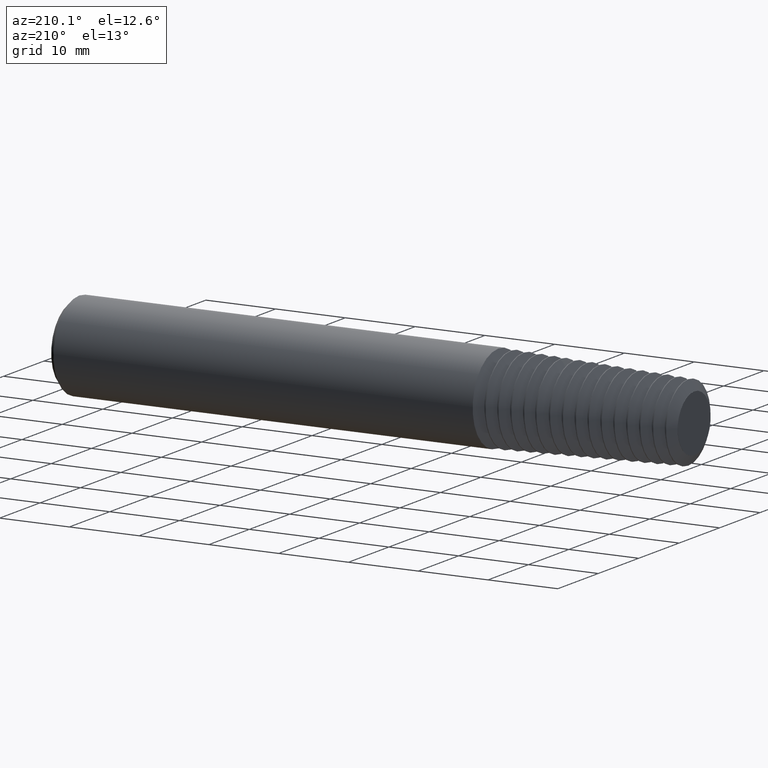
[diagram: clean part render]
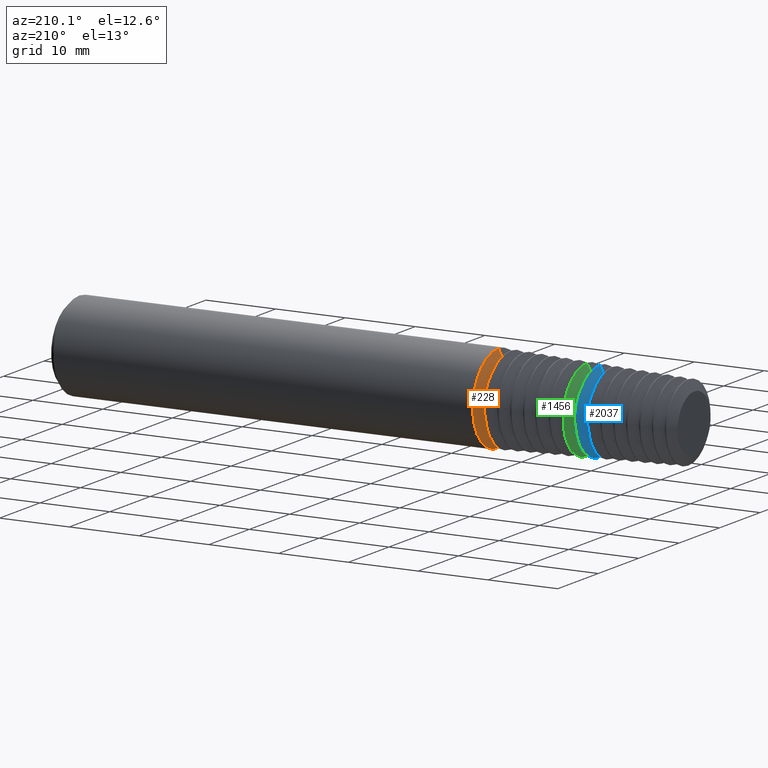
[diagram: same view with three faces highlighted in distinct colors, each labeled with its STEP entity id]
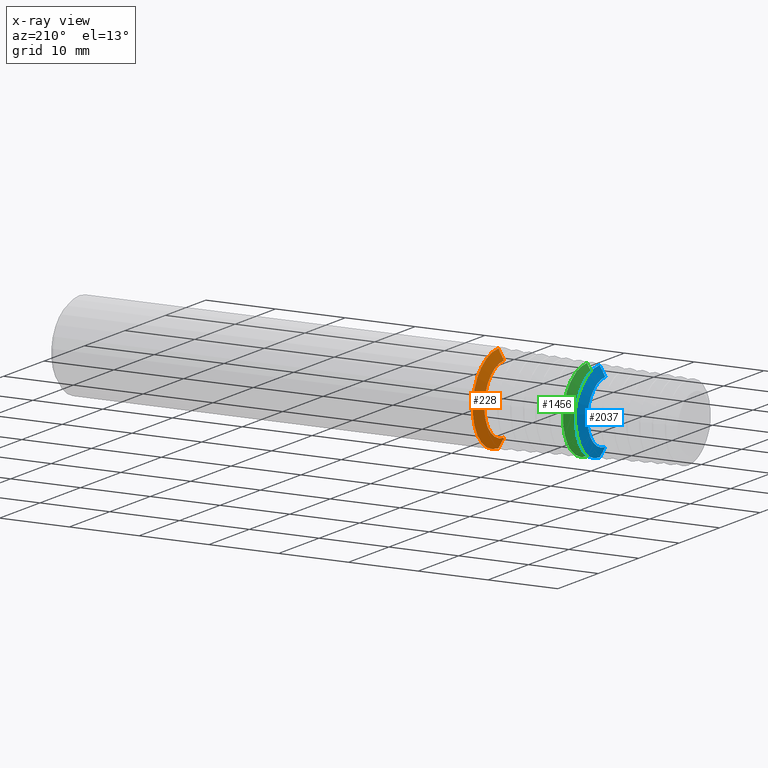
[diagram: x-ray of the same camera — body ghosted, the three highlighted faces saturated]
A machine part, auxiliary view with three faces highlighted in distinct colors.
The next image is the same camera in x-ray (body ghosted, the three faces saturated) — at least one of them is partly hidden behind the body in this view.
Their STEP definitions:

[orange] entity #228 — the highlighted conical surface has half-angle 60.258 deg.
#140 = CARTESIAN_POINT ( 'NONE',  ( 0.09742857173323683784, 0.0000000000000000000, -0.1931546316964028176 ) ) ;
#151 = CARTESIAN_POINT ( 'NONE',  ( 0.1298227692868461347, 0.0000000000000000000, 0.2498499999999999888 ) ) ;
#191 = CARTESIAN_POINT ( 'NONE',  ( 0.1298227692868461347, 0.0000000000000000000, 0.0000000000000000000 ) ) ;
#228 = ADVANCED_FACE ( 'NONE', ( #2712 ), #2635, .T. ) ;
#250 = AXIS2_PLACEMENT_3D ( 'NONE', #507, #2077, #2571 ) ;
#252 = VECTOR ( 'NONE', #3117, 39.37007874015748143 ) ;
#433 = DIRECTION ( 'NONE',  ( 1.000000000000000000, -0.0000000000000000000, -0.0000000000000000000 ) ) ;
#507 = CARTESIAN_POINT ( 'NONE',  ( 0.09742857173323683784, 0.0000000000000000000, 0.0000000000000000000 ) ) ;
#630 = VERTEX_POINT ( 'NONE', #140 ) ;
#646 = CARTESIAN_POINT ( 'NONE',  ( 0.1498435585412066506, 3.488893747639883349E-17, 0.2848897943528687082 ) ) ;
#702 = EDGE_CURVE ( 'NONE', #1572, #2912, #1241, .T. ) ;
#772 = CARTESIAN_POINT ( 'NONE',  ( 0.1498435585412066506, 0.0000000000000000000, 0.0000000000000000000 ) ) ;
#793 = ORIENTED_EDGE ( 'NONE', *, *, #1354, .T. ) ;
#982 = CARTESIAN_POINT ( 'NONE',  ( 0.1298227692868461347, 3.059780027669661931E-17, -0.2498499999999999888 ) ) ;
#1076 = ORIENTED_EDGE ( 'NONE', *, *, #702, .F. ) ;
#1241 = CIRCLE ( 'NONE', #3293, 0.2498499999999999888 ) ;
#1354 = EDGE_CURVE ( 'NONE', #1467, #2912, #2125, .T. ) ;
#1467 = VERTEX_POINT ( 'NONE', #1941 ) ;
#1572 = VERTEX_POINT ( 'NONE', #982 ) ;
#1619 = AXIS2_PLACEMENT_3D ( 'NONE', #772, #2999, #2802 ) ;
#1921 = VECTOR ( 'NONE', #2648, 39.37007874015748143 ) ;
#1941 = CARTESIAN_POINT ( 'NONE',  ( 0.09742857173323683784, 2.365462014474856199E-17, 0.1931546316964028176 ) ) ;
#2077 = DIRECTION ( 'NONE',  ( 1.000000000000000000, -0.0000000000000000000, -0.0000000000000000000 ) ) ;
#2125 = LINE ( 'NONE', #646, #1921 ) ;
#2177 = DIRECTION ( 'NONE',  ( 0.0000000000000000000, 0.0000000000000000000, -1.000000000000000000 ) ) ;
#2221 = EDGE_LOOP ( 'NONE', ( #2935, #793, #1076, #2819 ) ) ;
#2260 = EDGE_CURVE ( 'NONE', #630, #1467, #2596, .T. ) ;
#2387 = EDGE_CURVE ( 'NONE', #630, #1572, #2401, .T. ) ;
#2401 = LINE ( 'NONE', #2612, #252 ) ;
#2571 = DIRECTION ( 'NONE',  ( 0.0000000000000000000, 0.0000000000000000000, -1.000000000000000000 ) ) ;
#2596 = CIRCLE ( 'NONE', #250, 0.1931546316964028176 ) ;
#2612 = CARTESIAN_POINT ( 'NONE',  ( 0.1498435585412066506, 0.0000000000000000000, -0.2848897943528687082 ) ) ;
#2635 = CONICAL_SURFACE ( 'NONE', #1619, 0.2848897943528687082, 1.051692173941522368 ) ;
#2648 = DIRECTION ( 'NONE',  ( 0.4961025052282187486, 1.063316679479361290E-16, 0.8682639600411184988 ) ) ;
#2712 = FACE_OUTER_BOUND ( 'NONE', #2221, .T. ) ;
#2802 = DIRECTION ( 'NONE',  ( 0.0000000000000000000, 0.0000000000000000000, -1.000000000000000000 ) ) ;
#2819 = ORIENTED_EDGE ( 'NONE', *, *, #2387, .F. ) ;
#2912 = VERTEX_POINT ( 'NONE', #151 ) ;
#2935 = ORIENTED_EDGE ( 'NONE', *, *, #2260, .T. ) ;
#2999 = DIRECTION ( 'NONE',  ( 1.000000000000000000, -0.0000000000000000000, -0.0000000000000000000 ) ) ;
#3117 = DIRECTION ( 'NONE',  ( 0.4961025052282187486, 0.0000000000000000000, -0.8682639600411184988 ) ) ;
#3293 = AXIS2_PLACEMENT_3D ( 'NONE', #191, #433, #2177 ) ;

[blue] entity #2037 — the highlighted conical surface has half-angle 60.258 deg.
#149 = ORIENTED_EDGE ( 'NONE', *, *, #3254, .F. ) ;
#188 = CARTESIAN_POINT ( 'NONE',  ( -0.4418863300302219854, 0.0000000000000000000, -0.2315675465729214455 ) ) ;
#253 = LINE ( 'NONE', #3288, #977 ) ;
#336 = CARTESIAN_POINT ( 'NONE',  ( -0.4418863300302219854, 2.835884546969338977E-17, 0.2315675465729214455 ) ) ;
#400 = CIRCLE ( 'NONE', #1614, 0.1753631501930209002 ) ;
#484 = CONICAL_SURFACE ( 'NONE', #1340, 0.2315675465729214455, 1.051692169426139190 ) ;
#599 = ORIENTED_EDGE ( 'NONE', *, *, #1987, .T. ) ;
#605 = VECTOR ( 'NONE', #2414, 39.37007874015748854 ) ;
#632 = CARTESIAN_POINT ( 'NONE',  ( -0.4418863300302219854, 2.835884546969338977E-17, 0.2315675465729214455 ) ) ;
#652 = CARTESIAN_POINT ( 'NONE',  ( -0.4418863300302219854, 0.0000000000000000000, 0.0000000000000000000 ) ) ;
#744 = DIRECTION ( 'NONE',  ( 0.0000000000000000000, 0.0000000000000000000, -1.000000000000000000 ) ) ;
#827 = EDGE_CURVE ( 'NONE', #2066, #2377, #2171, .T. ) ;
#922 = AXIS2_PLACEMENT_3D ( 'NONE', #1504, #1733, #744 ) ;
#951 = DIRECTION ( 'NONE',  ( 1.000000000000000000, -0.0000000000000000000, -0.0000000000000000000 ) ) ;
#977 = VECTOR ( 'NONE', #2809, 39.37007874015748854 ) ;
#1261 = CARTESIAN_POINT ( 'NONE',  ( -0.4739999998638489420, 2.147579205722795926E-17, 0.1753631501930209002 ) ) ;
#1340 = AXIS2_PLACEMENT_3D ( 'NONE', #652, #951, #3221 ) ;
#1504 = CARTESIAN_POINT ( 'NONE',  ( -0.4418863300302219854, 0.0000000000000000000, 0.0000000000000000000 ) ) ;
#1580 = VERTEX_POINT ( 'NONE', #3004 ) ;
#1586 = ORIENTED_EDGE ( 'NONE', *, *, #1934, .T. ) ;
#1614 = AXIS2_PLACEMENT_3D ( 'NONE', #1905, #2208, #2929 ) ;
#1733 = DIRECTION ( 'NONE',  ( 1.000000000000000000, -0.0000000000000000000, -0.0000000000000000000 ) ) ;
#1905 = CARTESIAN_POINT ( 'NONE',  ( -0.4739999998638489420, 0.0000000000000000000, 0.0000000000000000000 ) ) ;
#1934 = EDGE_CURVE ( 'NONE', #3283, #2377, #3280, .T. ) ;
#1966 = FACE_OUTER_BOUND ( 'NONE', #3173, .T. ) ;
#1987 = EDGE_CURVE ( 'NONE', #1580, #3283, #400, .T. ) ;
#2037 = ADVANCED_FACE ( 'NONE', ( #1966 ), #484, .T. ) ;
#2066 = VERTEX_POINT ( 'NONE', #188 ) ;
#2071 = ORIENTED_EDGE ( 'NONE', *, *, #827, .F. ) ;
#2171 = CIRCLE ( 'NONE', #922, 0.2315675465729214455 ) ;
#2208 = DIRECTION ( 'NONE',  ( 1.000000000000000000, -0.0000000000000000000, -0.0000000000000000000 ) ) ;
#2377 = VERTEX_POINT ( 'NONE', #336 ) ;
#2414 = DIRECTION ( 'NONE',  ( 0.4961025091487630823, 1.063316676736038574E-16, 0.8682639578010256098 ) ) ;
#2809 = DIRECTION ( 'NONE',  ( 0.4961025091487630823, 0.0000000000000000000, -0.8682639578010256098 ) ) ;
#2929 = DIRECTION ( 'NONE',  ( 0.0000000000000000000, 0.0000000000000000000, -1.000000000000000000 ) ) ;
#3004 = CARTESIAN_POINT ( 'NONE',  ( -0.4739999998638489420, 0.0000000000000000000, -0.1753631501930209002 ) ) ;
#3173 = EDGE_LOOP ( 'NONE', ( #599, #1586, #2071, #149 ) ) ;
#3221 = DIRECTION ( 'NONE',  ( 0.0000000000000000000, 0.0000000000000000000, -1.000000000000000000 ) ) ;
#3254 = EDGE_CURVE ( 'NONE', #1580, #2066, #253, .T. ) ;
#3280 = LINE ( 'NONE', #632, #605 ) ;
#3283 = VERTEX_POINT ( 'NONE', #1261 ) ;
#3288 = CARTESIAN_POINT ( 'NONE',  ( -0.4418863300302219854, 0.0000000000000000000, -0.2315675465729214455 ) ) ;

[green] entity #1456 — the highlighted conical surface has half-angle 60.258 deg.
#21 = VERTEX_POINT ( 'NONE', #1700 ) ;
#35 = DIRECTION ( 'NONE',  ( 0.0000000000000000000, 0.0000000000000000000, -1.000000000000000000 ) ) ;
#45 = DIRECTION ( 'NONE',  ( 1.000000000000000000, -0.0000000000000000000, -0.0000000000000000000 ) ) ;
#352 = CARTESIAN_POINT ( 'NONE',  ( -0.3704577586016505886, 0.0000000000000000000, -0.2337914817976244897 ) ) ;
#386 = VERTEX_POINT ( 'NONE', #1507 ) ;
#544 = CARTESIAN_POINT ( 'NONE',  ( -0.3704577586016505886, 0.0000000000000000000, 0.0000000000000000000 ) ) ;
#557 = VERTEX_POINT ( 'NONE', #352 ) ;
#725 = CARTESIAN_POINT ( 'NONE',  ( -0.3704577586016505886, 0.0000000000000000000, -0.2337914817976244897 ) ) ;
#783 = CIRCLE ( 'NONE', #1569, 0.1775870853809436434 ) ;
#803 = ORIENTED_EDGE ( 'NONE', *, *, #1830, .F. ) ;
#851 = EDGE_CURVE ( 'NONE', #386, #557, #2959, .T. ) ;
#1060 = CONICAL_SURFACE ( 'NONE', #2058, 0.2337914817976244897, 1.051692169990561476 ) ;
#1095 = ORIENTED_EDGE ( 'NONE', *, *, #2015, .T. ) ;
#1131 = ORIENTED_EDGE ( 'NONE', *, *, #2725, .T. ) ;
#1209 = DIRECTION ( 'NONE',  ( 0.0000000000000000000, 0.0000000000000000000, -1.000000000000000000 ) ) ;
#1213 = FACE_OUTER_BOUND ( 'NONE', #2980, .T. ) ;
#1418 = DIRECTION ( 'NONE',  ( 0.4961025086586957067, 1.063316677078953575E-16, 0.8682639580810369573 ) ) ;
#1454 = CARTESIAN_POINT ( 'NONE',  ( -0.3704577586016505886, 0.0000000000000000000, 0.0000000000000000000 ) ) ;
#1456 = ADVANCED_FACE ( 'NONE', ( #1213 ), #1060, .T. ) ;
#1507 = CARTESIAN_POINT ( 'NONE',  ( -0.4025714284142132837, 0.0000000000000000000, -0.1775870853809436434 ) ) ;
#1569 = AXIS2_PLACEMENT_3D ( 'NONE', #3084, #45, #1823 ) ;
#1700 = CARTESIAN_POINT ( 'NONE',  ( -0.3704577586016505886, 2.863119898513775072E-17, 0.2337914817976244897 ) ) ;
#1823 = DIRECTION ( 'NONE',  ( 0.0000000000000000000, 0.0000000000000000000, -1.000000000000000000 ) ) ;
#1830 = EDGE_CURVE ( 'NONE', #557, #21, #2485, .T. ) ;
#1879 = LINE ( 'NONE', #2684, #2274 ) ;
#2015 = EDGE_CURVE ( 'NONE', #2558, #21, #1879, .T. ) ;
#2058 = AXIS2_PLACEMENT_3D ( 'NONE', #1454, #2732, #1209 ) ;
#2251 = DIRECTION ( 'NONE',  ( 0.4961025086586957067, 0.0000000000000000000, -0.8682639580810369573 ) ) ;
#2274 = VECTOR ( 'NONE', #1418, 39.37007874015748143 ) ;
#2485 = CIRCLE ( 'NONE', #3229, 0.2337914817976244897 ) ;
#2558 = VERTEX_POINT ( 'NONE', #2646 ) ;
#2611 = VECTOR ( 'NONE', #2251, 39.37007874015748143 ) ;
#2646 = CARTESIAN_POINT ( 'NONE',  ( -0.4025714284142132837, 2.174814556816803229E-17, 0.1775870853809436434 ) ) ;
#2684 = CARTESIAN_POINT ( 'NONE',  ( -0.3704577586016505886, 2.863119898513775072E-17, 0.2337914817976244897 ) ) ;
#2725 = EDGE_CURVE ( 'NONE', #386, #2558, #783, .T. ) ;
#2732 = DIRECTION ( 'NONE',  ( 1.000000000000000000, -0.0000000000000000000, -0.0000000000000000000 ) ) ;
#2959 = LINE ( 'NONE', #725, #2611 ) ;
#2980 = EDGE_LOOP ( 'NONE', ( #1131, #1095, #803, #3235 ) ) ;
#3061 = DIRECTION ( 'NONE',  ( 1.000000000000000000, -0.0000000000000000000, -0.0000000000000000000 ) ) ;
#3084 = CARTESIAN_POINT ( 'NONE',  ( -0.4025714284142132837, 0.0000000000000000000, 0.0000000000000000000 ) ) ;
#3229 = AXIS2_PLACEMENT_3D ( 'NONE', #544, #3061, #35 ) ;
#3235 = ORIENTED_EDGE ( 'NONE', *, *, #851, .F. ) ;